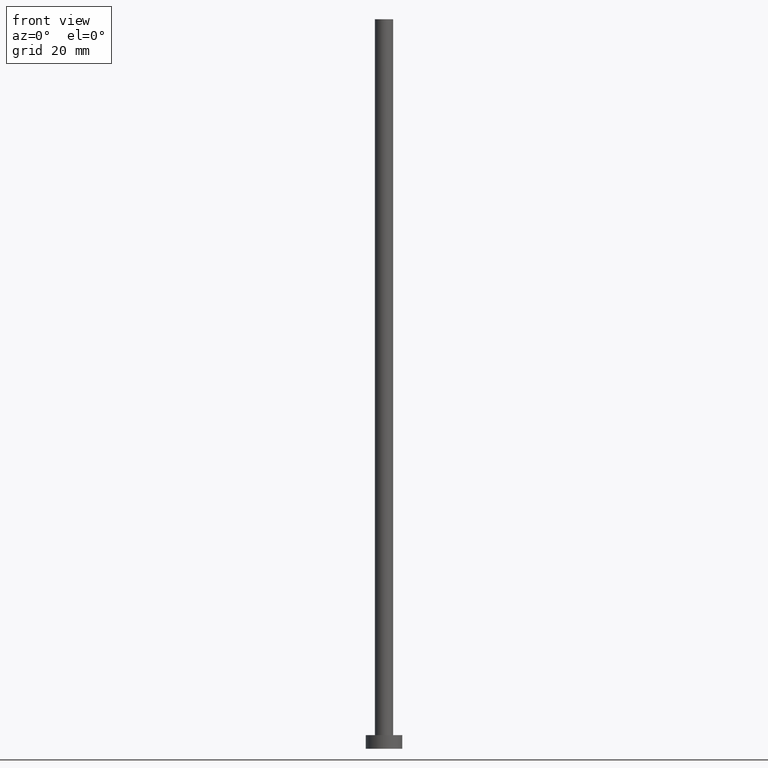
[diagram: clean part render]
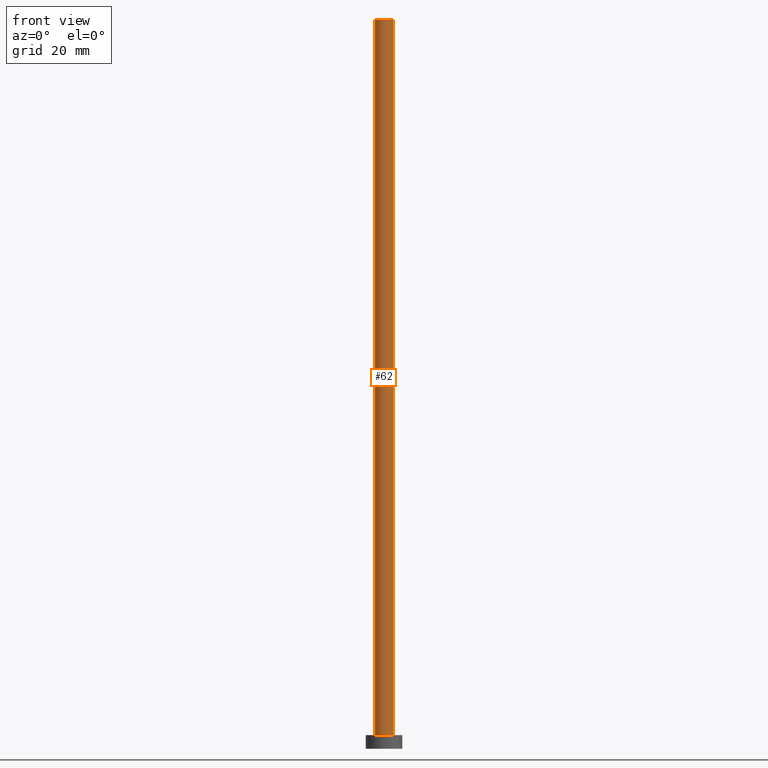
[diagram: same view with one face highlighted and labeled with its STEP entity id]
A machine part, front view. The second image highlights one B-rep face of the part: STEP entity #62.
In plain terms, the highlighted cylindrical surface (edge-blend (fillet) strip) has radius 2 mm, axis along (-0, -0, -1).
Its self-contained STEP definition (entity closure, byte-faithful):
#18 = VERTEX_POINT ( 'NONE', #177 ) ;
#24 = CARTESIAN_POINT ( 'NONE',  ( 2.000000000000000000, 2.449293598294706414E-16, 160.0000000000000000 ) ) ;
#25 = LINE ( 'NONE', #113, #216 ) ;
#33 = EDGE_CURVE ( 'NONE', #234, #175, #223, .T. ) ;
#40 = ORIENTED_EDGE ( 'NONE', *, *, #33, .T. ) ;
#53 = DIRECTION ( 'NONE',  ( 1.000000000000000000, 0.000000000000000000, 0.000000000000000000 ) ) ;
#59 = DIRECTION ( 'NONE',  ( 1.000000000000000000, 0.000000000000000000, 0.000000000000000000 ) ) ;
#62 = ADVANCED_FACE ( 'NONE', ( #238 ), #182, .T. ) ;
#79 = AXIS2_PLACEMENT_3D ( 'NONE', #100, #229, #53 ) ;
#84 = ORIENTED_EDGE ( 'NONE', *, *, #131, .F. ) ;
#89 = VERTEX_POINT ( 'NONE', #190 ) ;
#98 = ORIENTED_EDGE ( 'NONE', *, *, #125, .F. ) ;
#100 = CARTESIAN_POINT ( 'NONE',  ( 0.000000000000000000, 0.000000000000000000, 3.000000000000000000 ) ) ;
#102 = DIRECTION ( 'NONE',  ( -0.000000000000000000, -0.000000000000000000, -1.000000000000000000 ) ) ;
#106 = DIRECTION ( 'NONE',  ( -0.000000000000000000, -0.000000000000000000, -1.000000000000000000 ) ) ;
#113 = CARTESIAN_POINT ( 'NONE',  ( -2.000000000000000000, 0.000000000000000000, 160.0000000000000000 ) ) ;
#118 = AXIS2_PLACEMENT_3D ( 'NONE', #126, #206, #221 ) ;
#122 = CARTESIAN_POINT ( 'NONE',  ( -2.000000000000000000, 0.000000000000000000, 3.000000000000000000 ) ) ;
#125 = EDGE_CURVE ( 'NONE', #89, #175, #202, .T. ) ;
#126 = CARTESIAN_POINT ( 'NONE',  ( 0.000000000000000000, 0.000000000000000000, 160.0000000000000000 ) ) ;
#131 = EDGE_CURVE ( 'NONE', #18, #89, #225, .T. ) ;
#145 = EDGE_CURVE ( 'NONE', #18, #234, #25, .T. ) ;
#146 = AXIS2_PLACEMENT_3D ( 'NONE', #179, #235, #59 ) ;
#159 = ORIENTED_EDGE ( 'NONE', *, *, #145, .T. ) ;
#175 = VERTEX_POINT ( 'NONE', #184 ) ;
#177 = CARTESIAN_POINT ( 'NONE',  ( -2.000000000000000000, 0.000000000000000000, 160.0000000000000000 ) ) ;
#179 = CARTESIAN_POINT ( 'NONE',  ( 0.000000000000000000, 0.000000000000000000, 160.0000000000000000 ) ) ;
#182 = CYLINDRICAL_SURFACE ( 'NONE', #118, 2.000000000000000000 ) ;
#183 = EDGE_LOOP ( 'NONE', ( #98, #84, #159, #40 ) ) ;
#184 = CARTESIAN_POINT ( 'NONE',  ( 2.000000000000000000, 2.449293598294706414E-16, 3.000000000000000000 ) ) ;
#190 = CARTESIAN_POINT ( 'NONE',  ( 2.000000000000000000, 2.449293598294706414E-16, 160.0000000000000000 ) ) ;
#197 = VECTOR ( 'NONE', #102, 1000.000000000000000 ) ;
#202 = LINE ( 'NONE', #24, #197 ) ;
#206 = DIRECTION ( 'NONE',  ( -0.000000000000000000, -0.000000000000000000, -1.000000000000000000 ) ) ;
#216 = VECTOR ( 'NONE', #106, 1000.000000000000000 ) ;
#221 = DIRECTION ( 'NONE',  ( -1.000000000000000000, 0.000000000000000000, 0.000000000000000000 ) ) ;
#223 = CIRCLE ( 'NONE', #79, 2.000000000000000000 ) ;
#225 = CIRCLE ( 'NONE', #146, 2.000000000000000000 ) ;
#229 = DIRECTION ( 'NONE',  ( 0.000000000000000000, 0.000000000000000000, 1.000000000000000000 ) ) ;
#234 = VERTEX_POINT ( 'NONE', #122 ) ;
#235 = DIRECTION ( 'NONE',  ( 0.000000000000000000, 0.000000000000000000, 1.000000000000000000 ) ) ;
#238 = FACE_OUTER_BOUND ( 'NONE', #183, .T. ) ;